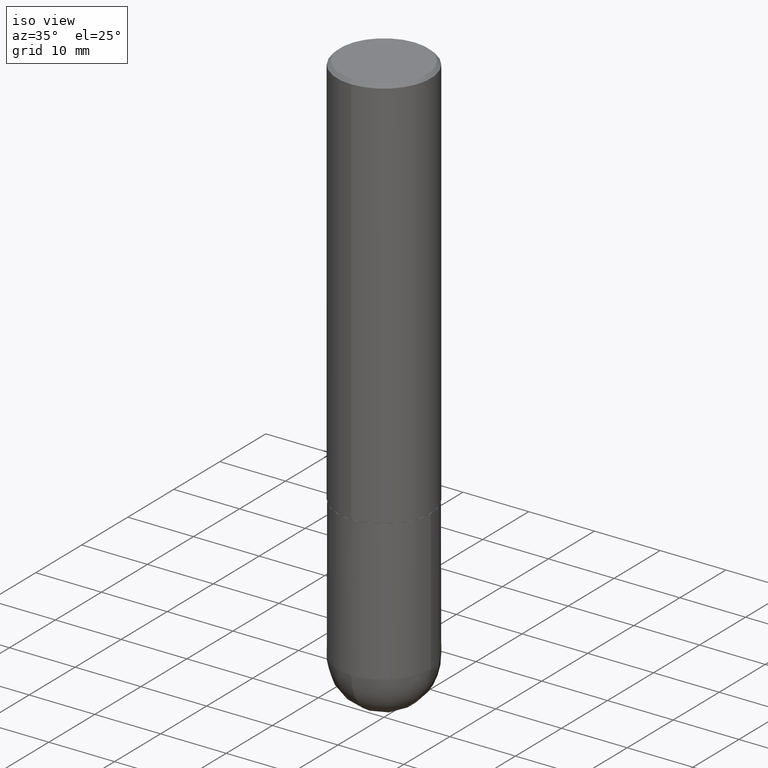
[diagram: clean part render]
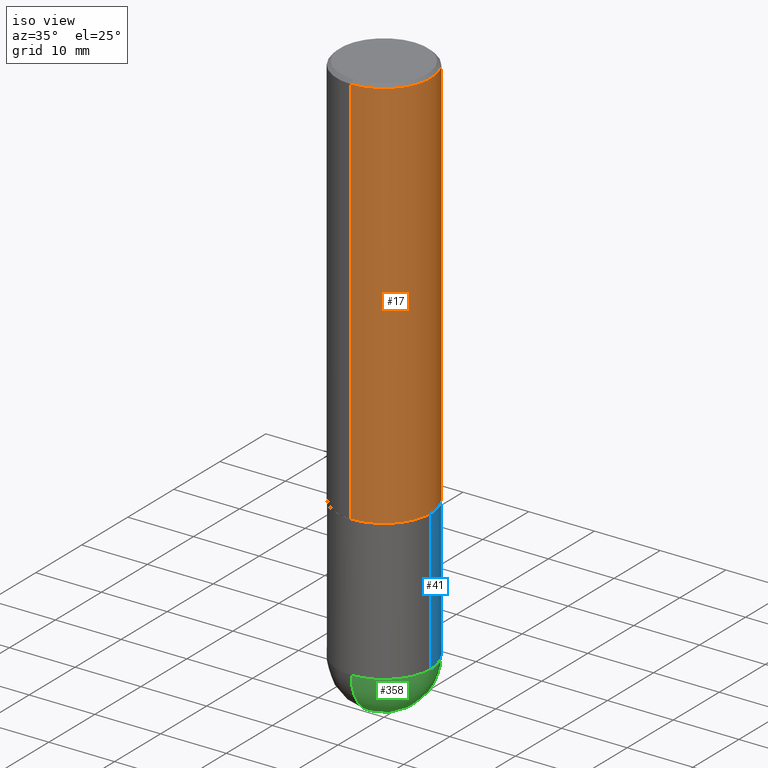
[diagram: same view with three faces highlighted in distinct colors, each labeled with its STEP entity id]
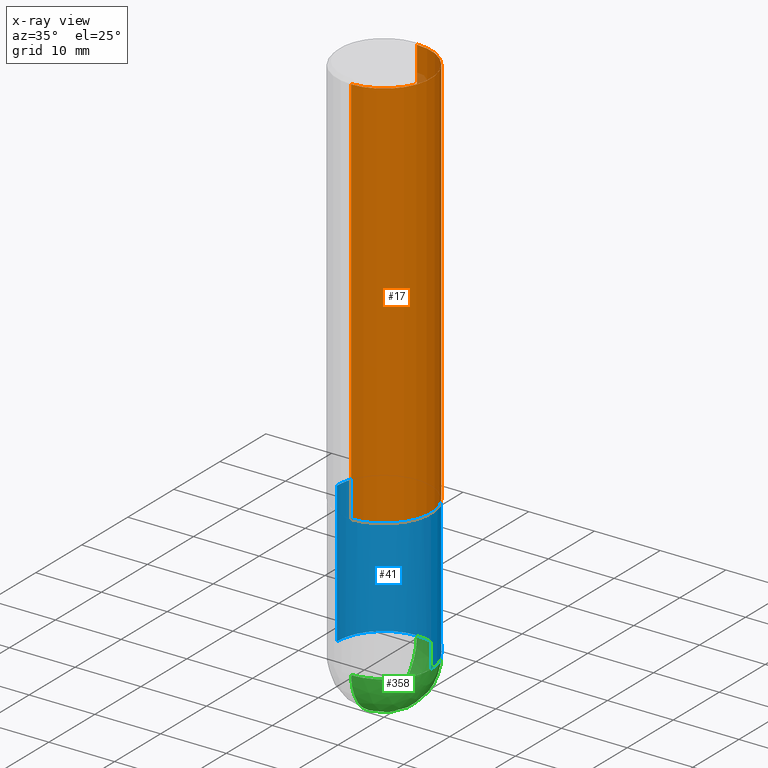
[diagram: x-ray of the same camera — body ghosted, the three highlighted faces saturated]
A machine part, iso view with three faces highlighted in distinct colors.
The next image is the same camera in x-ray (body ghosted, the three faces saturated) — at least one of them is partly hidden behind the body in this view.
Their STEP definitions:

[orange] entity #17 — the highlighted cylindrical surface (partial cylindrical patch) has radius 7.1438 mm, axis along (-0, 0, 1).
#2 = EDGE_CURVE ( 'NONE', #90, #55, #21, .T. ) ;
#6 = DIRECTION ( 'NONE',  ( -6.982962677686266711E-15, -1.000000000000000000, 3.490694658571003593E-15 ) ) ;
#9 = VECTOR ( 'NONE', #208, 39.37007874015748143 ) ;
#17 = ADVANCED_FACE ( 'NONE', ( #88 ), #316, .T. ) ;
#21 = CIRCLE ( 'NONE', #119, 0.2812499999999999445 ) ;
#28 = VECTOR ( 'NONE', #81, 39.37007874015748143 ) ;
#31 = CARTESIAN_POINT ( 'NONE',  ( 0.000000000000000000, 0.000000000000000000, 0.000000000000000000 ) ) ;
#45 = DIRECTION ( 'NONE',  ( -6.982962677686265133E-15, -1.000000000000000000, 3.885294924322504533E-15 ) ) ;
#55 = VERTEX_POINT ( 'NONE', #292 ) ;
#56 = CARTESIAN_POINT ( 'NONE',  ( -1.963958253099263301E-15, -0.2812500000000001110, 9.817768285126090044E-16 ) ) ;
#63 = CARTESIAN_POINT ( 'NONE',  ( 4.891942156115939858E-31, -6.981524113867461777E-17, -0.02000000000000006287 ) ) ;
#72 = DIRECTION ( 'NONE',  ( -2.445971078057962310E-29, 3.490762056933719721E-15, 1.000000000000000000 ) ) ;
#74 = CARTESIAN_POINT ( 'NONE',  ( 5.806735339309601077E-29, -8.287069123160647874E-15, -2.373999999999999222 ) ) ;
#77 = CARTESIAN_POINT ( 'NONE',  ( 1.998401444325312144E-15, 0.2812499999999919509, -2.374000000000000554 ) ) ;
#81 = DIRECTION ( 'NONE',  ( -2.445971078057962310E-29, 3.490762056933720116E-15, 1.000000000000000000 ) ) ;
#88 = FACE_OUTER_BOUND ( 'NONE', #278, .T. ) ;
#90 = VERTEX_POINT ( 'NONE', #301 ) ;
#119 = AXIS2_PLACEMENT_3D ( 'NONE', #63, #251, #6 ) ;
#141 = CARTESIAN_POINT ( 'NONE',  ( 1.998401444325282167E-15, 0.2812500000000001110, -9.817768285126090044E-16 ) ) ;
#185 = DIRECTION ( 'NONE',  ( -2.445971078057962310E-29, 3.490762056933719721E-15, 1.000000000000000000 ) ) ;
#204 = LINE ( 'NONE', #141, #9 ) ;
#208 = DIRECTION ( 'NONE',  ( -2.445971078057962310E-29, 3.490762056933720116E-15, 1.000000000000000000 ) ) ;
#218 = EDGE_CURVE ( 'NONE', #303, #319, #397, .T. ) ;
#222 = AXIS2_PLACEMENT_3D ( 'NONE', #31, #185, #321 ) ;
#225 = ORIENTED_EDGE ( 'NONE', *, *, #266, .T. ) ;
#232 = ORIENTED_EDGE ( 'NONE', *, *, #218, .T. ) ;
#251 = DIRECTION ( 'NONE',  ( -2.445971078057962310E-29, 3.490762056933719721E-15, 1.000000000000000000 ) ) ;
#266 = EDGE_CURVE ( 'NONE', #319, #55, #204, .T. ) ;
#278 = EDGE_LOOP ( 'NONE', ( #232, #225, #323, #406 ) ) ;
#292 = CARTESIAN_POINT ( 'NONE',  ( 1.963958253099262512E-15, 0.2812499999999998890, -0.02000000000000104472 ) ) ;
#301 = CARTESIAN_POINT ( 'NONE',  ( -1.929515061873242463E-15, -0.2812500000000000555, -0.01999999999999908101 ) ) ;
#303 = VERTEX_POINT ( 'NONE', #396 ) ;
#316 = CYLINDRICAL_SURFACE ( 'NONE', #222, 0.2812500000000001110 ) ;
#317 = EDGE_CURVE ( 'NONE', #303, #90, #336, .T. ) ;
#319 = VERTEX_POINT ( 'NONE', #77 ) ;
#321 = DIRECTION ( 'NONE',  ( -6.982962677686266711E-15, -1.000000000000000000, 3.490762056933719721E-15 ) ) ;
#323 = ORIENTED_EDGE ( 'NONE', *, *, #2, .F. ) ;
#336 = LINE ( 'NONE', #56, #28 ) ;
#386 = AXIS2_PLACEMENT_3D ( 'NONE', #74, #72, #45 ) ;
#396 = CARTESIAN_POINT ( 'NONE',  ( -1.963958253099205714E-15, -0.2812500000000085487, -2.373999999999998334 ) ) ;
#397 = CIRCLE ( 'NONE', #386, 0.2812500000000002220 ) ;
#406 = ORIENTED_EDGE ( 'NONE', *, *, #317, .F. ) ;

[blue] entity #41 — the highlighted cylindrical surface (partial cylindrical patch) has radius 7.1438 mm, axis along (-0, 0, 1).
#29 = ORIENTED_EDGE ( 'NONE', *, *, #324, .T. ) ;
#41 = ADVANCED_FACE ( 'NONE', ( #349 ), #132, .T. ) ;
#47 = CARTESIAN_POINT ( 'NONE',  ( 0.2812500000000000555, -1.963958253099262907E-15, 1.371424718192607012E-29 ) ) ;
#53 = VECTOR ( 'NONE', #365, 39.37007874015748143 ) ;
#75 = EDGE_CURVE ( 'NONE', #146, #138, #131, .T. ) ;
#96 = DIRECTION ( 'NONE',  ( 1.000000000000000000, -6.982962677686268288E-15, 0.000000000000000000 ) ) ;
#103 = DIRECTION ( 'NONE',  ( -2.445468806185136877E-29, 3.491481338843145188E-15, 1.000000000000000000 ) ) ;
#114 = CARTESIAN_POINT ( 'NONE',  ( 7.871352719908407300E-29, -1.123820555940137375E-14, -3.218749999999999556 ) ) ;
#127 = AXIS2_PLACEMENT_3D ( 'NONE', #330, #191, #161 ) ;
#131 = LINE ( 'NONE', #47, #179 ) ;
#132 = CYLINDRICAL_SURFACE ( 'NONE', #127, 0.2812500000000000555 ) ;
#138 = VERTEX_POINT ( 'NONE', #389 ) ;
#146 = VERTEX_POINT ( 'NONE', #157 ) ;
#149 = ORIENTED_EDGE ( 'NONE', *, *, #167, .T. ) ;
#157 = CARTESIAN_POINT ( 'NONE',  ( 0.2812500000000000555, -1.172919512267618602E-14, -3.218749999999999556 ) ) ;
#161 = DIRECTION ( 'NONE',  ( 1.000000000000000000, -6.982962677686266711E-15, 4.876176775795935232E-29 ) ) ;
#167 = EDGE_CURVE ( 'NONE', #146, #368, #359, .T. ) ;
#174 = CARTESIAN_POINT ( 'NONE',  ( -0.2812500000000000555, -7.766835425251639371E-15, -3.218749999999999556 ) ) ;
#179 = VECTOR ( 'NONE', #103, 39.37007874015748143 ) ;
#187 = ORIENTED_EDGE ( 'NONE', *, *, #279, .T. ) ;
#189 = AXIS2_PLACEMENT_3D ( 'NONE', #258, #295, #96 ) ;
#191 = DIRECTION ( 'NONE',  ( -2.445468806185136597E-29, 3.491481338843145583E-15, 1.000000000000000000 ) ) ;
#240 = ORIENTED_EDGE ( 'NONE', *, *, #383, .F. ) ;
#245 = CARTESIAN_POINT ( 'NONE',  ( -0.2812500000000000555, 1.998401444325282167E-15, -1.383450494134192269E-29 ) ) ;
#248 = CIRCLE ( 'NONE', #263, 0.2812500000000000000 ) ;
#256 = CIRCLE ( 'NONE', #371, 0.2812500000000000555 ) ;
#258 = CARTESIAN_POINT ( 'NONE',  ( 7.871352719908407300E-29, -1.123820555940137375E-14, -3.218749999999999556 ) ) ;
#263 = AXIS2_PLACEMENT_3D ( 'NONE', #401, #309, #311 ) ;
#275 = DIRECTION ( 'NONE',  ( -2.445468806185136597E-29, 3.491481338843145583E-15, 1.000000000000000000 ) ) ;
#279 = EDGE_CURVE ( 'NONE', #368, #374, #256, .T. ) ;
#284 = ORIENTED_EDGE ( 'NONE', *, *, #75, .F. ) ;
#295 = DIRECTION ( 'NONE',  ( -2.445468806185136597E-29, 3.491481338843145583E-15, 1.000000000000000000 ) ) ;
#309 = DIRECTION ( 'NONE',  ( -2.445468806185136597E-29, 3.491481338843145583E-15, 1.000000000000000000 ) ) ;
#311 = DIRECTION ( 'NONE',  ( 1.000000000000000000, -6.982962677686269866E-15, 0.000000000000000000 ) ) ;
#324 = EDGE_CURVE ( 'NONE', #374, #382, #398, .T. ) ;
#330 = CARTESIAN_POINT ( 'NONE',  ( 0.000000000000000000, 0.000000000000000000, 0.000000000000000000 ) ) ;
#349 = FACE_OUTER_BOUND ( 'NONE', #350, .T. ) ;
#350 = EDGE_LOOP ( 'NONE', ( #187, #29, #240, #284, #149 ) ) ;
#359 = CIRCLE ( 'NONE', #189, 0.2812500000000000555 ) ;
#363 = CARTESIAN_POINT ( 'NONE',  ( -0.2812500000000000000, -7.766835425251637793E-15, -2.374999999999999556 ) ) ;
#365 = DIRECTION ( 'NONE',  ( -2.445468806185136877E-29, 3.491481338843145188E-15, 1.000000000000000000 ) ) ;
#366 = CARTESIAN_POINT ( 'NONE',  ( 1.963958253099340610E-15, 0.2812499999999886757, -3.218750000000000888 ) ) ;
#368 = VERTEX_POINT ( 'NONE', #366 ) ;
#371 = AXIS2_PLACEMENT_3D ( 'NONE', #114, #275, #400 ) ;
#374 = VERTEX_POINT ( 'NONE', #174 ) ;
#382 = VERTEX_POINT ( 'NONE', #363 ) ;
#383 = EDGE_CURVE ( 'NONE', #138, #382, #248, .T. ) ;
#389 = CARTESIAN_POINT ( 'NONE',  ( 0.2812500000000000000, -1.025622643285173184E-14, -2.374999999999999556 ) ) ;
#398 = LINE ( 'NONE', #245, #53 ) ;
#400 = DIRECTION ( 'NONE',  ( 1.000000000000000000, -6.982962677686268288E-15, 0.000000000000000000 ) ) ;
#401 = CARTESIAN_POINT ( 'NONE',  ( 5.807988414689698296E-29, -8.292268179752468540E-15, -2.374999999999999556 ) ) ;

[green] entity #358 — the highlighted spherical surface has radius 7.1438 mm.
#11 = CARTESIAN_POINT ( 'NONE',  ( -1.998401444325206042E-15, -0.2812500000000116573, -3.218749999999998668 ) ) ;
#27 = VERTEX_POINT ( 'NONE', #286 ) ;
#37 = AXIS2_PLACEMENT_3D ( 'NONE', #236, #199, #79 ) ;
#68 = AXIS2_PLACEMENT_3D ( 'NONE', #134, #367, #175 ) ;
#78 = AXIS2_PLACEMENT_3D ( 'NONE', #108, #276, #338 ) ;
#79 = DIRECTION ( 'NONE',  ( 1.000000000000000000, -6.982962677686268288E-15, 0.000000000000000000 ) ) ;
#82 = ORIENTED_EDGE ( 'NONE', *, *, #167, .F. ) ;
#96 = DIRECTION ( 'NONE',  ( 1.000000000000000000, -6.982962677686268288E-15, 0.000000000000000000 ) ) ;
#97 = DIRECTION ( 'NONE',  ( 6.982962677686265133E-15, 1.000000000000000000, 0.000000000000000000 ) ) ;
#107 = EDGE_CURVE ( 'NONE', #27, #368, #280, .T. ) ;
#108 = CARTESIAN_POINT ( 'NONE',  ( 7.540232941994521053E-29, -1.171238792754142562E-14, -3.218749999999999556 ) ) ;
#124 = ORIENTED_EDGE ( 'NONE', *, *, #227, .F. ) ;
#134 = CARTESIAN_POINT ( 'NONE',  ( 7.540232941994521053E-29, -1.171238792754142562E-14, -3.218749999999999556 ) ) ;
#146 = VERTEX_POINT ( 'NONE', #157 ) ;
#157 = CARTESIAN_POINT ( 'NONE',  ( 0.2812500000000000555, -1.172919512267618602E-14, -3.218749999999999556 ) ) ;
#167 = EDGE_CURVE ( 'NONE', #146, #368, #359, .T. ) ;
#168 = SPHERICAL_SURFACE ( 'NONE', #78, 0.2812500000000003331 ) ;
#175 = DIRECTION ( 'NONE',  ( -7.105427357601001859E-15, -1.000000000000000000, 0.000000000000000000 ) ) ;
#178 = ORIENTED_EDGE ( 'NONE', *, *, #340, .F. ) ;
#180 = CIRCLE ( 'NONE', #37, 0.2812500000000000555 ) ;
#189 = AXIS2_PLACEMENT_3D ( 'NONE', #258, #295, #96 ) ;
#199 = DIRECTION ( 'NONE',  ( -2.445468806185136597E-29, 3.491481338843145583E-15, 1.000000000000000000 ) ) ;
#205 = AXIS2_PLACEMENT_3D ( 'NONE', #356, #238, #97 ) ;
#206 = FACE_OUTER_BOUND ( 'NONE', #219, .T. ) ;
#209 = VERTEX_POINT ( 'NONE', #11 ) ;
#219 = EDGE_LOOP ( 'NONE', ( #178, #310, #82, #124 ) ) ;
#227 = EDGE_CURVE ( 'NONE', #209, #146, #180, .T. ) ;
#236 = CARTESIAN_POINT ( 'NONE',  ( 7.871352719908407300E-29, -1.123820555940137375E-14, -3.218749999999999556 ) ) ;
#238 = DIRECTION ( 'NONE',  ( 1.000000000000000000, -6.982962677686265922E-15, 4.883557194083112340E-29 ) ) ;
#241 = CIRCLE ( 'NONE', #68, 0.2812500000000003331 ) ;
#258 = CARTESIAN_POINT ( 'NONE',  ( 7.871352719908407300E-29, -1.123820555940137375E-14, -3.218749999999999556 ) ) ;
#276 = DIRECTION ( 'NONE',  ( -1.000000000000000000, 6.982962677686265922E-15, -4.883557194083112901E-29 ) ) ;
#280 = CIRCLE ( 'NONE', #205, 0.2812500000000003331 ) ;
#286 = CARTESIAN_POINT ( 'NONE',  ( 8.240046819675677659E-29, -1.267714545847805119E-14, -3.500000000000000000 ) ) ;
#295 = DIRECTION ( 'NONE',  ( -2.445468806185136597E-29, 3.491481338843145583E-15, 1.000000000000000000 ) ) ;
#310 = ORIENTED_EDGE ( 'NONE', *, *, #107, .T. ) ;
#338 = DIRECTION ( 'NONE',  ( 6.982962677686265922E-15, 1.000000000000000000, -3.885294924322502955E-15 ) ) ;
#340 = EDGE_CURVE ( 'NONE', #27, #209, #241, .T. ) ;
#356 = CARTESIAN_POINT ( 'NONE',  ( 7.540232941994521053E-29, -1.171238792754142562E-14, -3.218749999999999556 ) ) ;
#358 = ADVANCED_FACE ( 'NONE', ( #206 ), #168, .T. ) ;
#359 = CIRCLE ( 'NONE', #189, 0.2812500000000000555 ) ;
#366 = CARTESIAN_POINT ( 'NONE',  ( 1.963958253099340610E-15, 0.2812499999999886757, -3.218750000000000888 ) ) ;
#367 = DIRECTION ( 'NONE',  ( -1.000000000000000000, 7.105427357601001070E-15, -4.926315508542082329E-29 ) ) ;
#368 = VERTEX_POINT ( 'NONE', #366 ) ;